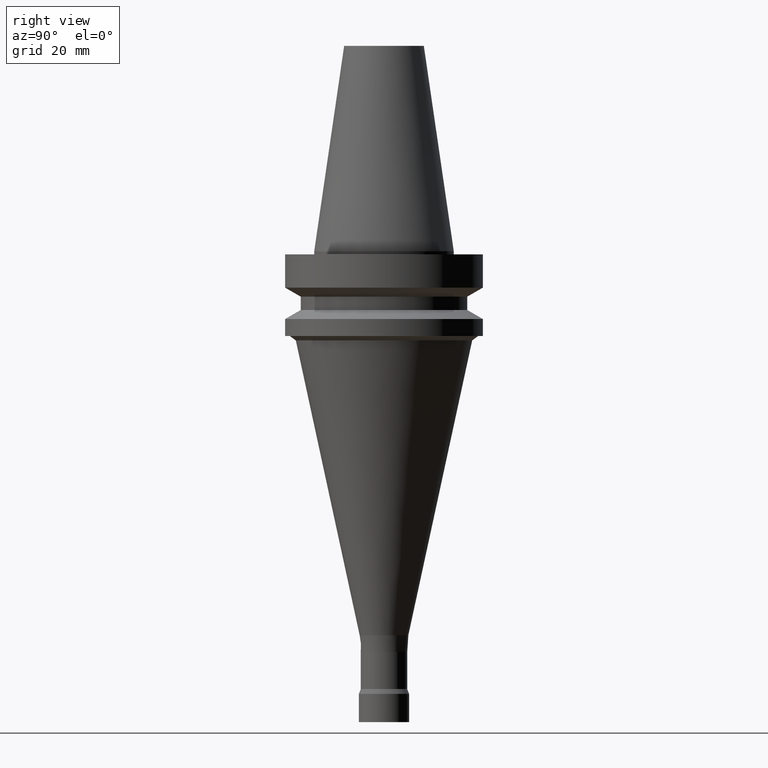
[diagram: clean part render]
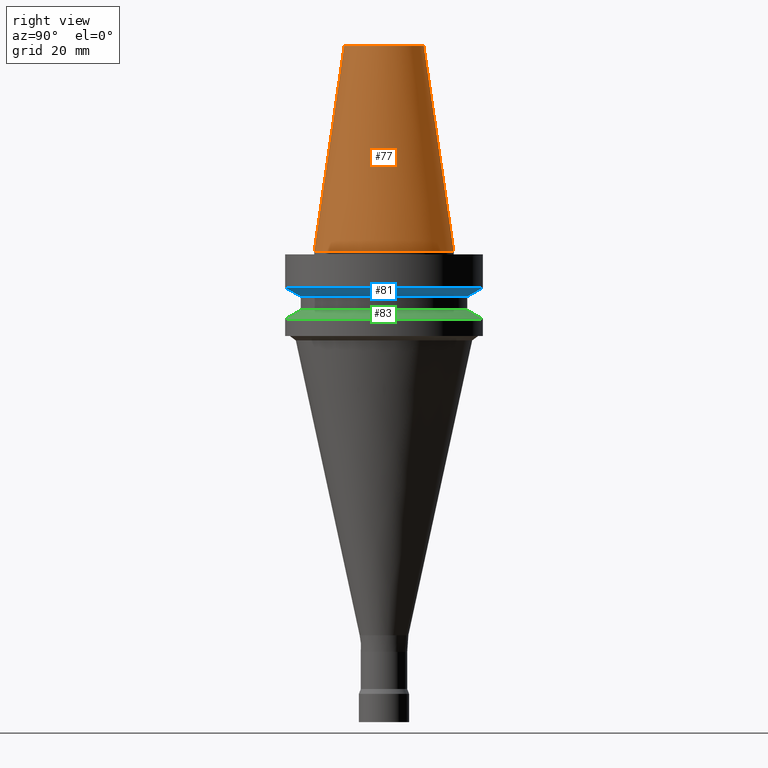
[diagram: same view with three faces highlighted in distinct colors, each labeled with its STEP entity id]
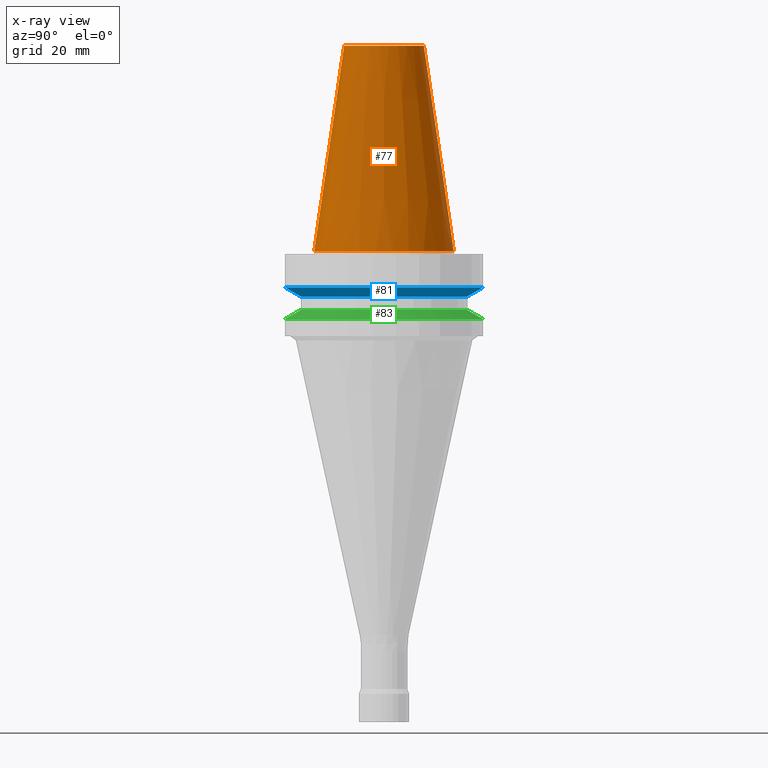
[diagram: x-ray of the same camera — body ghosted, the three highlighted faces saturated]
A machine part, right view with three faces highlighted in distinct colors.
The next image is the same camera in x-ray (body ghosted, the three faces saturated) — at least one of them is partly hidden behind the body in this view.
Their STEP definitions:

[orange] entity #77 — the highlighted conical surface has half-angle 8.297 deg.
#77=ADVANCED_FACE('',(#97,#98),#99,.T.);
#97=FACE_BOUND('',#146,.T.);
#98=FACE_BOUND('',#147,.T.);
#99=CONICAL_SURFACE('',#148,17.4562500026599,0.144812498159292);
#146=EDGE_LOOP('',(#199));
#147=EDGE_LOOP('',(#200));
#148=AXIS2_PLACEMENT_3D('',#201,#202,#203);
#199=ORIENTED_EDGE('',*,*,#276,.F.);
#200=ORIENTED_EDGE('',*,*,#275,.T.);
#201=CARTESIAN_POINT('',(-2.00229751660592E-015,-4.00459503321185E-015,32.7));
#202=DIRECTION('',(6.12323399573677E-017,1.22464679914735E-016,-1.0));
#203=DIRECTION('',(-1.23259516440783E-032,1.0,1.22464679914735E-016));
#275=EDGE_CURVE('',#292,#292,#293,.T.);
#276=EDGE_CURVE('',#294,#294,#295,.T.);
#292=VERTEX_POINT('',#324);
#293=CIRCLE('',#325,12.6875000053197);
#294=VERTEX_POINT('',#326);
#295=CIRCLE('',#327,22.225);
#324=CARTESIAN_POINT('',(-4.00459503321185E-015,12.6875000053197,65.4));
#325=AXIS2_PLACEMENT_3D('',#357,#358,#359);
#326=CARTESIAN_POINT('',(-1.88218999349326E-031,22.225,1.32177751110499E-015));
#327=AXIS2_PLACEMENT_3D('',#360,#361,#362);
#357=CARTESIAN_POINT('',(-4.00459503321185E-015,-8.00919006642369E-015,65.4));
#358=DIRECTION('',(6.12323399573677E-017,1.22464679914735E-016,-1.0));
#359=DIRECTION('',(-1.23259516440783E-032,1.0,1.22464679914735E-016));
#360=CARTESIAN_POINT('',(0.0,0.0,0.0));
#361=DIRECTION('',(6.12323399573677E-017,1.22464679914735E-016,-1.0));
#362=DIRECTION('',(-1.23259516440783E-032,1.0,1.22464679914735E-016));

[blue] entity #81 — the highlighted conical surface has half-angle 60 deg.
#81=ADVANCED_FACE('',(#109,#110),#111,.T.);
#109=FACE_BOUND('',#158,.T.);
#110=FACE_BOUND('',#159,.T.);
#111=CONICAL_SURFACE('',#160,29.0,1.04719755058882);
#158=EDGE_LOOP('',(#219));
#159=EDGE_LOOP('',(#220));
#160=AXIS2_PLACEMENT_3D('',#221,#222,#223);
#219=ORIENTED_EDGE('',*,*,#280,.F.);
#220=ORIENTED_EDGE('',*,*,#279,.T.);
#221=CARTESIAN_POINT('',(7.98676413523259E-016,1.59735282704652E-015,-13.043375675));
#222=DIRECTION('',(-6.12323399573677E-017,-1.22464679914735E-016,1.0));
#223=DIRECTION('',(-1.23259516440783E-032,1.0,1.22464679914735E-016));
#279=EDGE_CURVE('',#300,#300,#301,.T.);
#280=EDGE_CURVE('',#302,#302,#303,.T.);
#300=VERTEX_POINT('',#332);
#301=CIRCLE('',#333,31.5);
#302=VERTEX_POINT('',#334);
#303=CIRCLE('',#335,26.5);
#332=CARTESIAN_POINT('',(7.10295143505464E-016,31.5,-11.6));
#333=AXIS2_PLACEMENT_3D('',#369,#370,#371);
#334=CARTESIAN_POINT('',(8.87057683541055E-016,26.5,-14.48675135));
#335=AXIS2_PLACEMENT_3D('',#372,#373,#374);
#369=CARTESIAN_POINT('',(7.10295143505464E-016,1.42059028701093E-015,-11.6));
#370=DIRECTION('',(6.12323399573677E-017,1.22464679914735E-016,-1.0));
#371=DIRECTION('',(-1.23259516440783E-032,1.0,1.22464679914735E-016));
#372=CARTESIAN_POINT('',(8.87057683541054E-016,1.77411536708211E-015,-14.48675135));
#373=DIRECTION('',(6.12323399573677E-017,1.22464679914735E-016,-1.0));
#374=DIRECTION('',(-1.23259516440783E-032,1.0,1.22464679914735E-016));

[green] entity #83 — the highlighted conical surface has half-angle 60 deg.
#83=ADVANCED_FACE('',(#115,#116),#117,.T.);
#115=FACE_BOUND('',#164,.T.);
#116=FACE_BOUND('',#165,.T.);
#117=CONICAL_SURFACE('',#166,29.0,1.04719755058882);
#164=EDGE_LOOP('',(#229));
#165=EDGE_LOOP('',(#230));
#166=AXIS2_PLACEMENT_3D('',#231,#232,#233);
#229=ORIENTED_EDGE('',*,*,#282,.F.);
#230=ORIENTED_EDGE('',*,*,#281,.T.);
#231=CARTESIAN_POINT('',(1.23423727306135E-015,2.46847454612269E-015,-20.156624325));
#232=DIRECTION('',(6.12323399573677E-017,1.22464679914735E-016,-1.0));
#233=DIRECTION('',(-1.23259516440783E-032,1.0,1.22464679914735E-016));
#281=EDGE_CURVE('',#304,#304,#305,.T.);
#282=EDGE_CURVE('',#306,#306,#307,.T.);
#304=VERTEX_POINT('',#336);
#305=CIRCLE('',#337,26.5);
#306=VERTEX_POINT('',#338);
#307=CIRCLE('',#339,31.5);
#336=CARTESIAN_POINT('',(1.14585600304355E-015,26.5,-18.71324865));
#337=AXIS2_PLACEMENT_3D('',#375,#376,#377);
#338=CARTESIAN_POINT('',(1.32261854307914E-015,31.5,-21.6));
#339=AXIS2_PLACEMENT_3D('',#378,#379,#380);
#375=CARTESIAN_POINT('',(1.14585600304355E-015,2.2917120060871E-015,-18.71324865));
#376=DIRECTION('',(6.12323399573677E-017,1.22464679914735E-016,-1.0));
#377=DIRECTION('',(-1.23259516440783E-032,1.0,1.22464679914735E-016));
#378=CARTESIAN_POINT('',(1.32261854307914E-015,2.64523708615828E-015,-21.6));
#379=DIRECTION('',(6.12323399573677E-017,1.22464679914735E-016,-1.0));
#380=DIRECTION('',(-1.23259516440783E-032,1.0,1.22464679914735E-016));